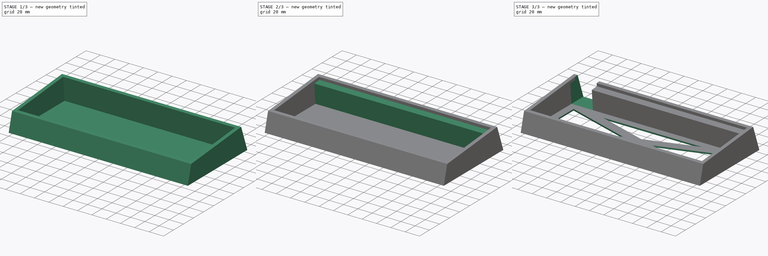
[diagram: build sequence overview — one tinted view per stage of 3, left to right]
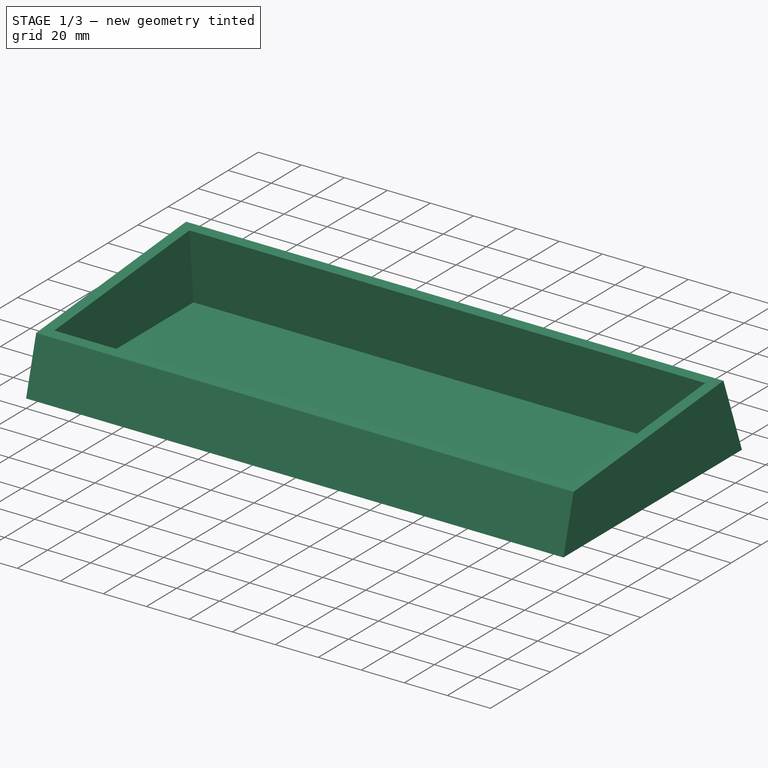
[diagram: stage 1 of 3 — iso view after this stage's code; geometry added in this stage tinted green]
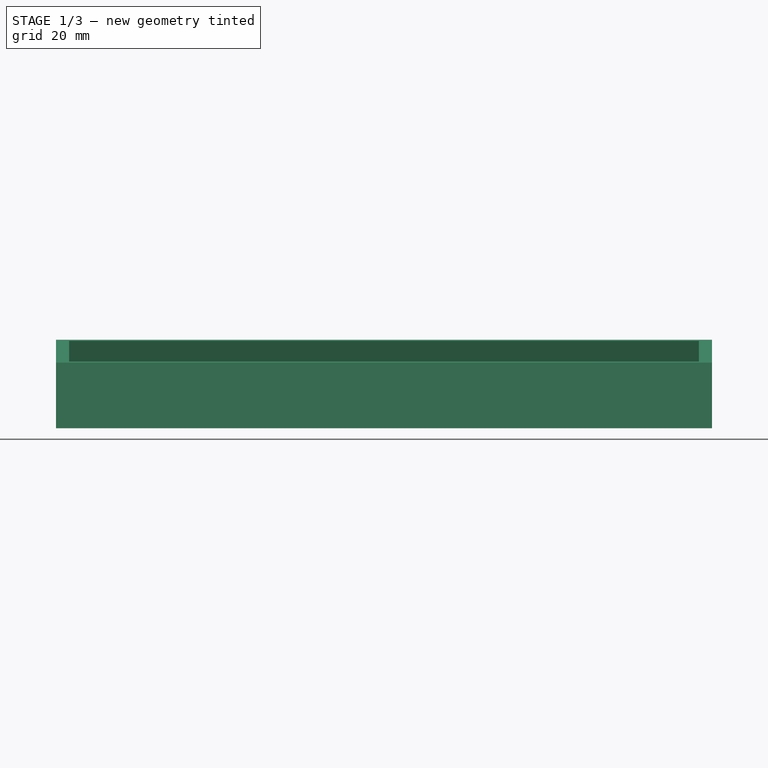
[diagram: stage 1 of 3 — front view after this stage's code; geometry added in this stage tinted green]
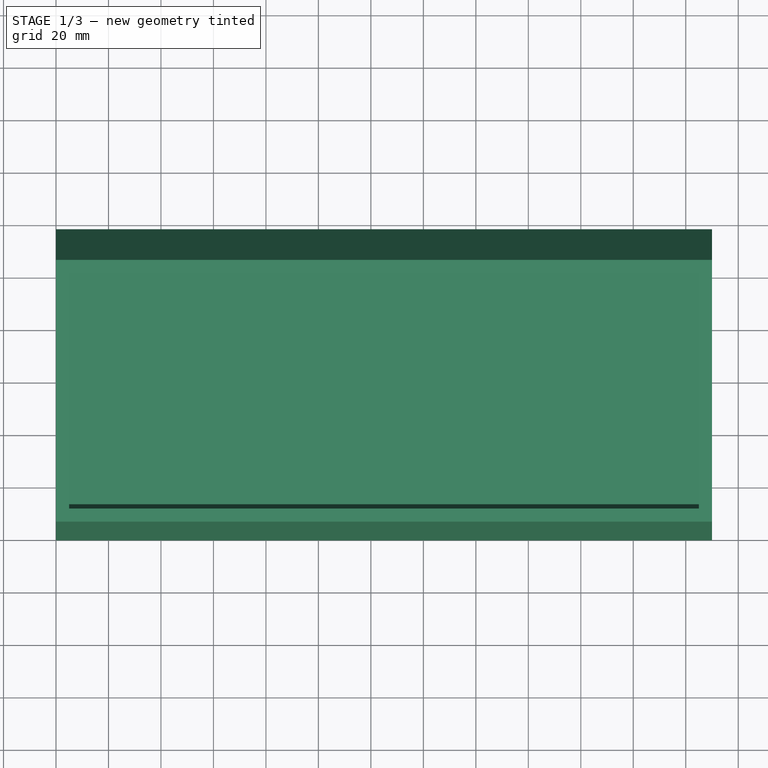
[diagram: stage 1 of 3 — top view after this stage's code; geometry added in this stage tinted green]
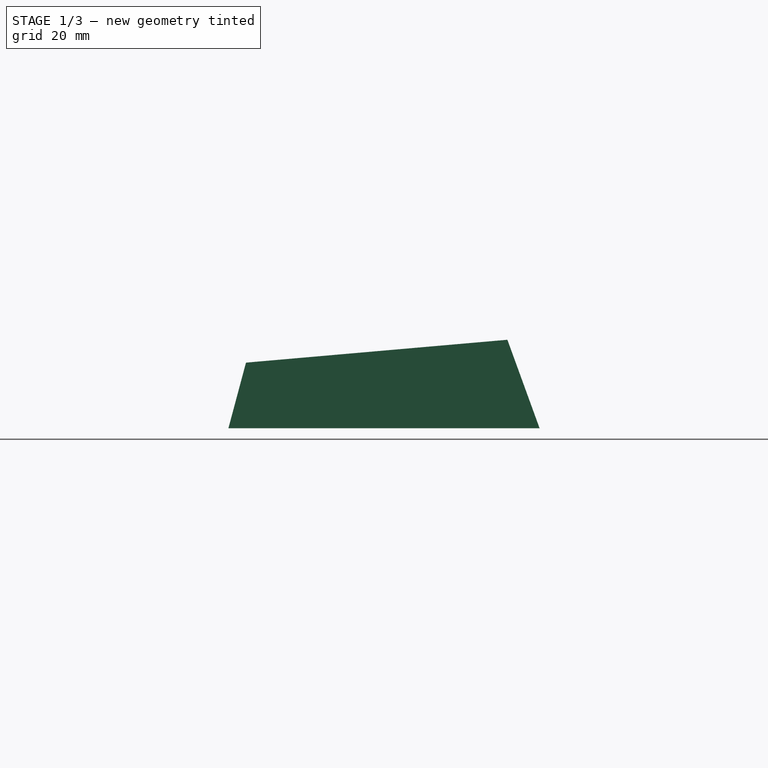
[diagram: stage 1 of 3 — right view after this stage's code; geometry added in this stage tinted green]
FCSTD DOCUMENT  (FreeCAD 0.20R)
Label: Case
License: All rights reserved
LicenseURL: http://en.wikipedia.org/wiki/All_rights_reserved
objects: Sketcher::SketchObject×6, PartDesign::Pad×3, PartDesign::Pocket×3, PartDesign::Body×1
note: 19 computed .brp shape members not serialized (recipe doc carries the construction recipe); baked Part::Feature solids carry a one-line shape summary decoded from their .brp

FEATURE [Sketcher::SketchObject] Sketch
  FullyConstrained = true
  MapMode = 5
  Placement = pos=(0,0,0) rot=(0.57735,0.57735,0.57735;2.0944rad)
  Support = -> [YZ_Plane]
  sketch-geometry (4):
    g0: LineSegment StartX=0 StartY=0 StartZ=0 EndX=6.69873 EndY=25 EndZ=0
    g1: LineSegment StartX=6.69873 StartY=25 StartZ=0 EndX=106.318 EndY=33.7156 EndZ=0
    g2: LineSegment StartX=106.318 StartY=33.7156 StartZ=0 EndX=118.59 EndY=0 EndZ=0
    g3: LineSegment StartX=118.59 StartY=0 StartZ=0 EndX=0 EndY=0 EndZ=0
  constraints (11):
    c: Coincident(g-1,g0)
    c: Coincident(g0,g1)
    c: Coincident(g1,g2)
    c: PointOnObject(g2,g-1)
    c: Coincident(g2,g3)
    c: Coincident(g3,g0)
    c: Angle(g3,g1) = 0.0872665
    c: Angle(g3,g0) = 1.309
    c: Angle(g2,g3) = 1.22173
    c: DistanceY(g0,g0) = 25
    c: Distance(g1) = 100
FEATURE [PartDesign::Pad] Pad
  Direction = (1,-2e-16,3e-16)
  Length = 250
  Length2 = 10
  Placement = pos=(0,0,0) rot=(0.57735,0.57735,0.57735;2.0944rad)
  Profile = -> Sketch
  ReferenceAxis = -> Sketch [N_Axis]
  Type = 0
FEATURE [Sketcher::SketchObject] Sketch003
  ExternalGeometry = -> [Pad]
  FullyConstrained = true
  MapMode = 5
  Placement = pos=(-7.8e-15,-2.11972,24.2285) rot=(0.043578,0.043578,-0.998099;1.5727rad)
  Support = -> [Pad]
  sketch-geometry (4):
    g0: LineSegment StartX=-103.852 StartY=245 StartZ=0 EndX=-13.8521 EndY=245 EndZ=0
    g1: LineSegment StartX=-13.8521 StartY=245 StartZ=0 EndX=-13.8521 EndY=5 EndZ=0
    g2: LineSegment StartX=-13.8521 StartY=5 StartZ=0 EndX=-103.852 EndY=5 EndZ=0
    g3: LineSegment StartX=-103.852 StartY=5 StartZ=0 EndX=-103.852 EndY=245 EndZ=0
  constraints (12):
    c: Coincident(g0,g1)
    c: Coincident(g1,g2)
    c: Coincident(g2,g3)
    c: Coincident(g3,g0)
    c: Horizontal(g0)
    c: Horizontal(g2)
    c: Vertical(g1)
    c: Vertical(g3)
    c: DistanceY(g-3,g1) = 5
    c: DistanceX(g1,g-3) = 5
    c: DistanceX(g-5,g0) = 5
    c: DistanceY(g0,g-5) = 5
FEATURE [PartDesign::Pocket] Pocket
  AlongSketchNormal = false
  BaseFeature = -> Pad
  Direction = (4e-16,0.0871557,-0.996195)
  Length = 0
  Length2 = 5
  Offset = -2
  Placement = pos=(0,0,0) rot=(0.57735,0.57735,0.57735;2.0944rad)
  Profile = -> Sketch003
  ReferenceAxis = -> Sketch003 [N_Axis]
  Type = 3
  UpToFace = -> Pad [Face4]
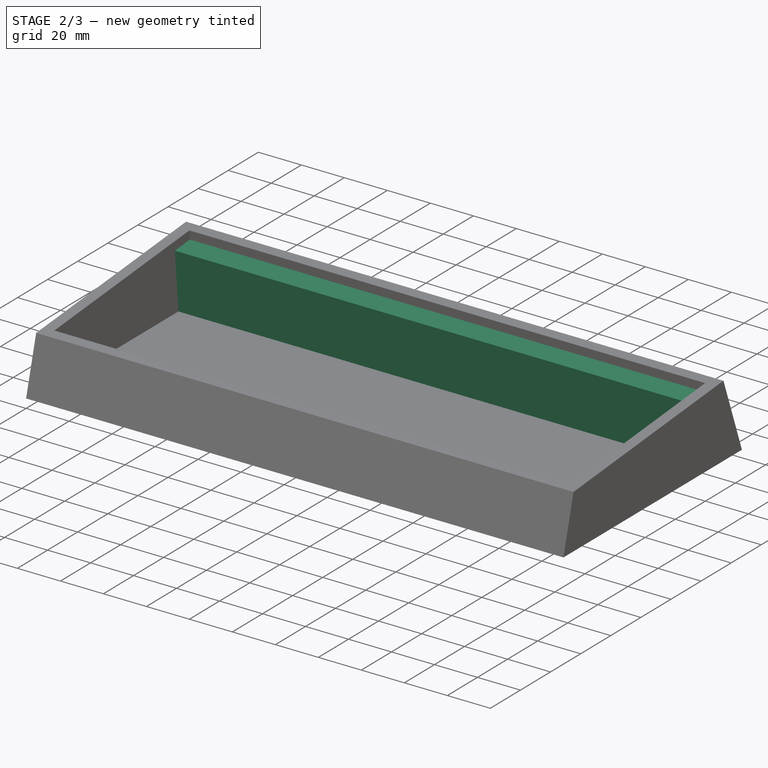
[diagram: stage 2 of 3 — iso view after this stage's code; geometry added in this stage tinted green]
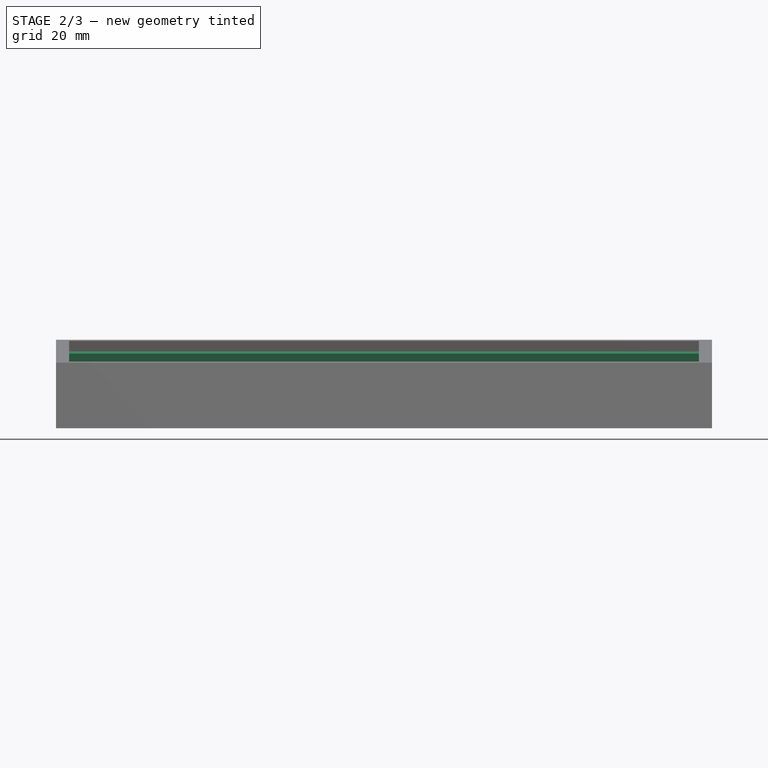
[diagram: stage 2 of 3 — front view after this stage's code; geometry added in this stage tinted green]
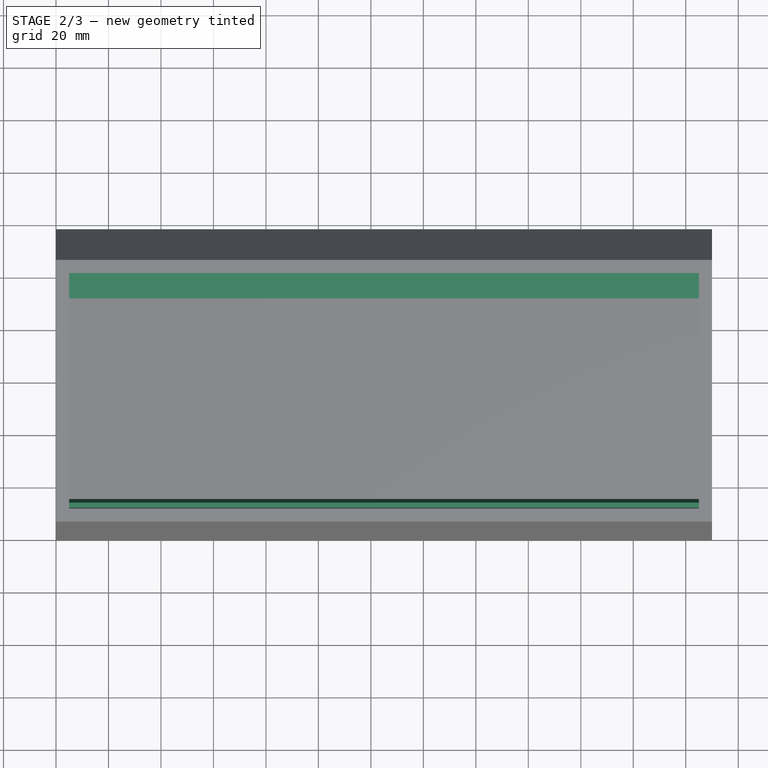
[diagram: stage 2 of 3 — top view after this stage's code; geometry added in this stage tinted green]
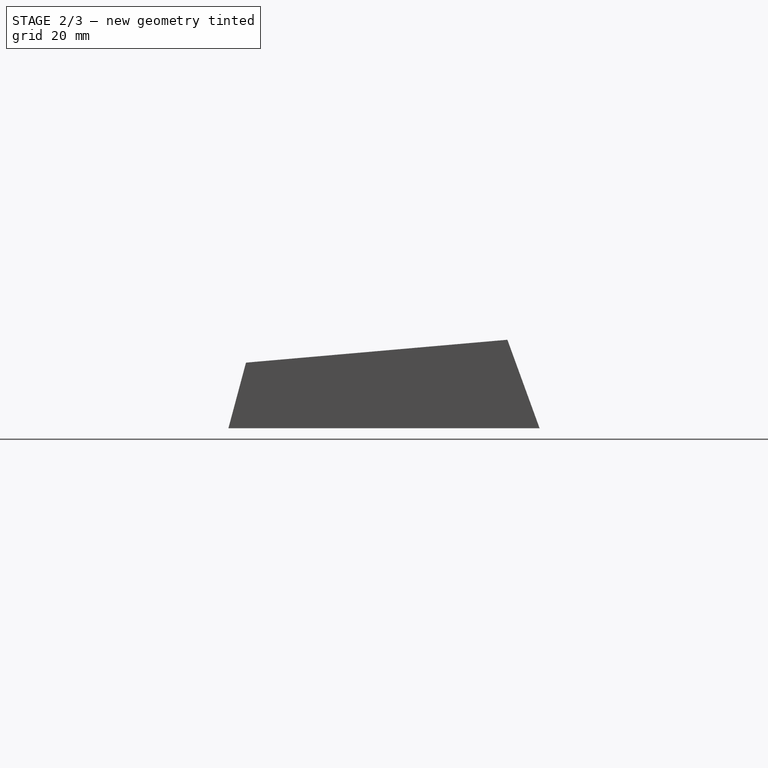
[diagram: stage 2 of 3 — right view after this stage's code; geometry added in this stage tinted green]
FEATURE [Sketcher::SketchObject] Sketch004
  ExternalGeometry = -> [Pocket]
  FullyConstrained = true
  MapMode = 5
  Placement = pos=(4.57e-14,103.457,9.05131) rot=(0.593426,0.593426,-0.543775;2.14549rad)
  Support = -> [Pocket]
  sketch-geometry (4):
    g0: LineSegment StartX=7.08588 StartY=5 StartZ=0 EndX=-20.321 EndY=5 EndZ=0
    g1: LineSegment StartX=-20.321 StartY=5 StartZ=0 EndX=-20.321 EndY=245 EndZ=0
    g2: LineSegment StartX=-20.321 StartY=245 StartZ=0 EndX=7.08588 EndY=245 EndZ=0
    g3: LineSegment StartX=7.08588 StartY=245 StartZ=0 EndX=7.08588 EndY=5 EndZ=0
  constraints (11):
    c: Coincident(g0,g1)
    c: Coincident(g1,g2)
    c: Coincident(g2,g3)
    c: Coincident(g3,g0)
    c: Horizontal(g0)
    c: Horizontal(g2)
    c: Vertical(g1)
    c: Vertical(g3)
    c: Coincident(g0,g-3)
    c: PointOnObject(g1,g-5)
    c: DistanceX(g-5,g1) = 4
FEATURE [PartDesign::Pad] Pad001
  BaseFeature = -> Pocket
  Direction = (-4e-16,-0.996195,-0.0871557)
  Length = 10
  Length2 = 10
  Placement = pos=(0,0,0) rot=(0.57735,0.57735,0.57735;2.0944rad)
  Profile = -> Sketch004
  ReferenceAxis = -> Sketch004 [N_Axis]
  Type = 0
FEATURE [Sketcher::SketchObject] Sketch005
  ExternalGeometry = -> [Pad001]
  FullyConstrained = true
  MapMode = 5
  Placement = pos=(6.1e-15,13.7994,1.20729) rot=(-0.559809,-0.559809,-0.610924;2.04477rad)
  Support = -> [Pad001]
  sketch-geometry (4):
    g0: LineSegment StartX=20.321 StartY=5 StartZ=0 EndX=0.788095 EndY=5 EndZ=0
    g1: LineSegment StartX=0.788095 StartY=5 StartZ=0 EndX=0.788095 EndY=245 EndZ=0
    g2: LineSegment StartX=0.788095 StartY=245 StartZ=0 EndX=20.321 EndY=245 EndZ=0
    g3: LineSegment StartX=20.321 StartY=245 StartZ=0 EndX=20.321 EndY=5 EndZ=0
  constraints (11):
    c: Coincident(g0,g1)
    c: Coincident(g1,g2)
    c: Coincident(g2,g3)
    c: Coincident(g3,g0)
    c: Horizontal(g0)
    c: Horizontal(g2)
    c: Vertical(g1)
    c: Vertical(g3)
    c: PointOnObject(g0,g-5)
    c: Coincident(g1,g-6)
    c: DistanceX(g2,g-6) = 4
FEATURE [PartDesign::Pad] Pad002
  BaseFeature = -> Pad001
  Direction = (7e-16,0.996195,0.0871557)
  Length = 2
  Length2 = 10
  Placement = pos=(0,0,0) rot=(0.57735,0.57735,0.57735;2.0944rad)
  Profile = -> Sketch005
  ReferenceAxis = -> Sketch005 [N_Axis]
  Type = 0
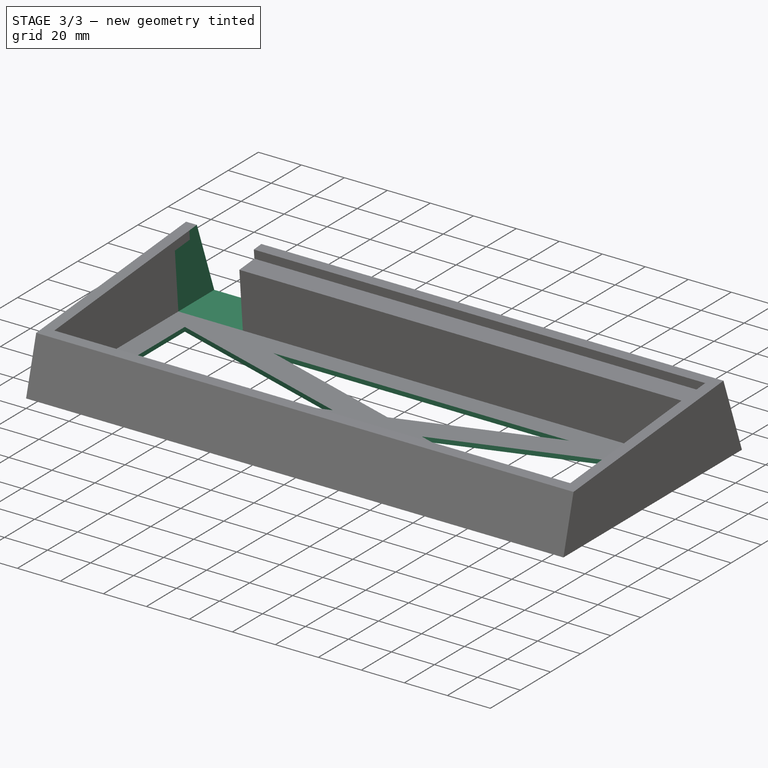
[diagram: stage 3 of 3 — iso view after this stage's code; geometry added in this stage tinted green]
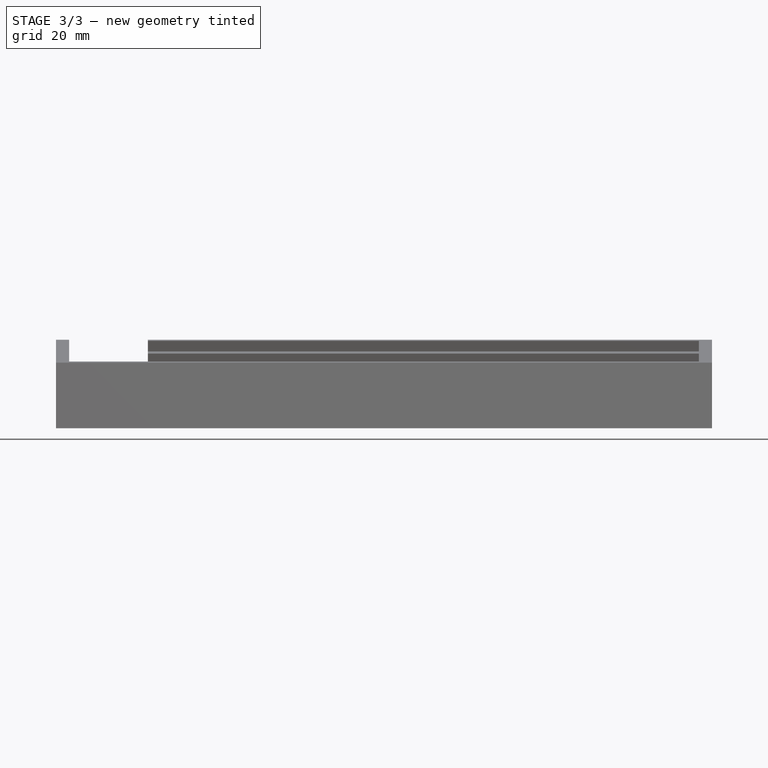
[diagram: stage 3 of 3 — front view after this stage's code; geometry added in this stage tinted green]
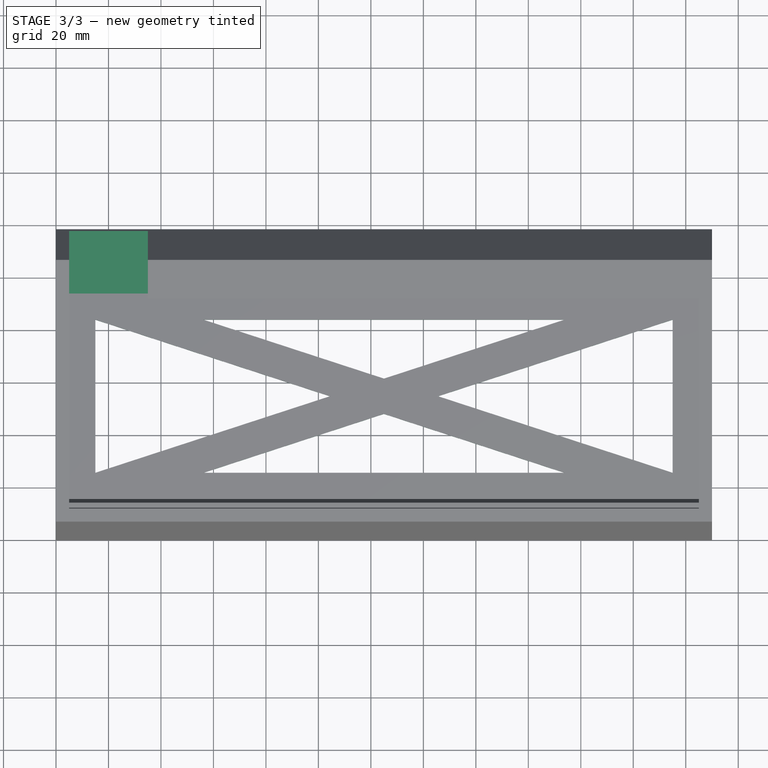
[diagram: stage 3 of 3 — top view after this stage's code; geometry added in this stage tinted green]
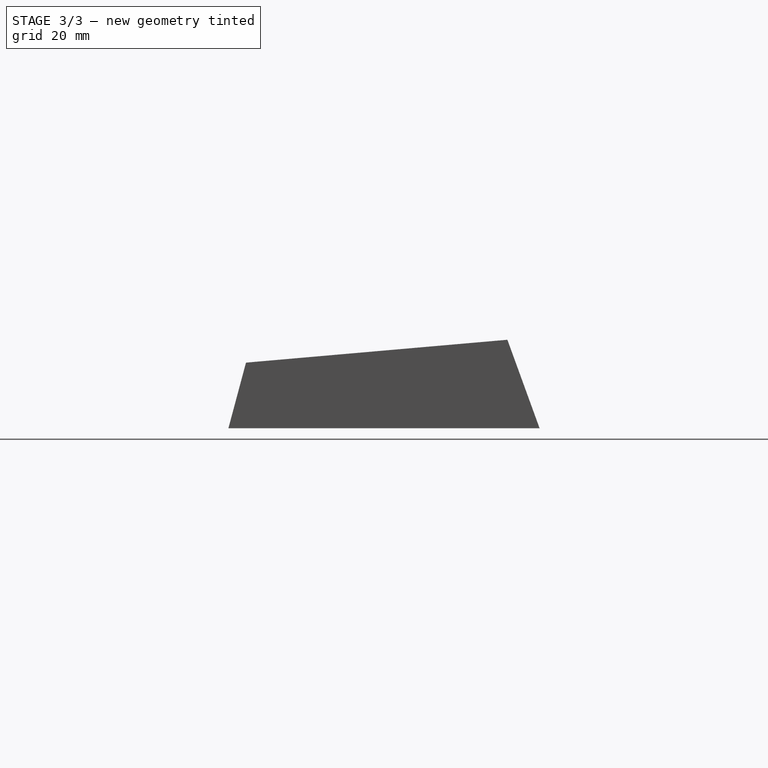
[diagram: stage 3 of 3 — right view after this stage's code; geometry added in this stage tinted green]
FEATURE [Sketcher::SketchObject] Sketch006
  ExternalGeometry = -> [Pad002]
  FullyConstrained = true
  MapMode = 5
  Placement = pos=(-7.8e-15,-2.11972,24.2285) rot=(0.043578,0.043578,-0.998099;1.5727rad)
  Support = -> [Pad002]
  sketch-geometry (4):
    g0: LineSegment StartX=-118.138 StartY=35 StartZ=0 EndX=-93.8521 EndY=35 EndZ=0
    g1: LineSegment StartX=-93.8521 StartY=35 StartZ=0 EndX=-93.8521 EndY=5 EndZ=0
    g2: LineSegment StartX=-93.8521 StartY=5 StartZ=0 EndX=-118.138 EndY=5 EndZ=0
    g3: LineSegment StartX=-118.138 StartY=5 StartZ=0 EndX=-118.138 EndY=35 EndZ=0
  constraints (11):
    c: Coincident(g0,g1)
    c: Coincident(g1,g2)
    c: Coincident(g2,g3)
    c: Coincident(g3,g0)
    c: Horizontal(g0)
    c: Horizontal(g2)
    c: Vertical(g1)
    c: Vertical(g3)
    c: PointOnObject(g0,g-3)
    c: Coincident(g1,g-4)
    c: DistanceY(g1,g1) = 30
FEATURE [PartDesign::Pocket] Pocket001
  BaseFeature = -> Pad002
  Direction = (3e-16,0.0871557,-0.996195)
  Length = 0
  Length2 = 5
  Placement = pos=(0,0,0) rot=(0.57735,0.57735,0.57735;2.0944rad)
  Profile = -> Sketch006
  ReferenceAxis = -> Sketch006 [N_Axis]
  Type = 3
  UpToFace = -> Pad002 [Face13]
FEATURE [Sketcher::SketchObject] Sketch007
  ExternalGeometry = -> [Pocket001]
  FullyConstrained = true
  MapMode = 5
  Placement = pos=(-1.2e-15,1.3e-15,1.99239) rot=(0,0,-1;1.5708rad)
  Support = -> [Pocket001]
  sketch-geometry (20):
    g0: LineSegment StartX=-94.0363 StartY=5 StartZ=0 EndX=-15.7231 EndY=245 EndZ=0
    g1: LineSegment StartX=-94.0363 StartY=245 StartZ=0 EndX=-15.7231 EndY=5 EndZ=0
    g2: GeomPoint X=-54.8797 Y=125 Z=0
    g3: LineSegment StartX=-94.0363 StartY=235 StartZ=0 EndX=-15.7231 EndY=235 EndZ=0
    g4: LineSegment StartX=-94.0363 StartY=15 StartZ=0 EndX=-15.7231 EndY=15 EndZ=0
    g5: LineSegment StartX=-84.0363 StartY=5 StartZ=0 EndX=-84.0363 EndY=245 EndZ=0
    g6: LineSegment StartX=-25.7231 StartY=5 StartZ=0 EndX=-25.7231 EndY=245 EndZ=0
    g7: LineSegment StartX=-54.8797 StartY=104.354 StartZ=0 EndX=-84.0363 EndY=15 EndZ=0
    g8: LineSegment StartX=-84.0363 StartY=15 StartZ=0 EndX=-25.7231 EndY=15 EndZ=0
    g9: LineSegment StartX=-25.7231 StartY=15 StartZ=0 EndX=-54.8797 EndY=104.354 EndZ=0
    g10: LineSegment StartX=-54.8797 StartY=145.646 StartZ=0 EndX=-84.0363 EndY=235 EndZ=0
    g11: LineSegment StartX=-84.0363 StartY=235 StartZ=0 EndX=-25.7231 EndY=235 EndZ=0
    g12: LineSegment StartX=-25.7231 StartY=235 StartZ=0 EndX=-54.8797 EndY=145.646 EndZ=0
    g13: LineSegment StartX=-84.0363 StartY=56.2924 StartZ=0 EndX=-84.0363 EndY=193.708 EndZ=0
    g14: LineSegment StartX=-84.0363 StartY=193.708 StartZ=0 EndX=-61.6167 EndY=125 EndZ=0
    g15: LineSegment StartX=-61.6167 StartY=125 StartZ=0 EndX=-84.0363 EndY=56.2924 EndZ=0
    g16: LineSegment StartX=-48.1428 StartY=125 StartZ=0 EndX=-25.7231 EndY=56.2924 EndZ=0
    g17: LineSegment StartX=-25.7231 StartY=56.2924 StartZ=0 EndX=-25.7231 EndY=193.708 EndZ=0
    g18: LineSegment StartX=-25.7231 StartY=193.708 StartZ=0 EndX=-48.1428 EndY=125 EndZ=0
    g19: GeomPoint X=-84.0363 Y=35.6462 Z=0
  constraints (57):
    c: Coincident(g0,g-6)
    c: Coincident(g0,g-5)
    c: Coincident(g1,g-7)
    c: Coincident(g1,g-5)
    c: PointOnObject(g2,g0)
    c: PointOnObject(g2,g1)
    c: PointOnObject(g3,g-3)
    c: PointOnObject(g3,g-5)
    c: PointOnObject(g4,g-4)
    c: PointOnObject(g4,g-5)
    c: Horizontal(g4)
    c: PointOnObject(g5,g-6)
    c: PointOnObject(g5,g-7)
    c: Vertical(g5)
    c: PointOnObject(g6,g-6)
    c: PointOnObject(g6,g-7)
    c: Vertical(g6)
    c: DistanceY(g3,g0) = 10
    c: DistanceY(g3,g1) = 10
    c: DistanceY(g0,g4) = 10
    c: DistanceX(g6,g1) = 10
    c: DistanceX(g0,g5) = 10
    c: PointOnObject(g7,g5)
    c: Coincident(g7,g8)
    c: PointOnObject(g8,g6)
    c: Horizontal(g8)
    c: Coincident(g8,g9)
    c: Coincident(g9,g7)
    c: PointOnObject(g10,g5)
    c: Coincident(g10,g11)
    c: PointOnObject(g11,g6)
    c: Coincident(g11,g12)
    c: Coincident(g12,g10)
    c: PointOnObject(g13,g5)
    c: PointOnObject(g13,g5)
    c: Coincident(g13,g14)
    c: Coincident(g14,g15)
    c: Coincident(g15,g13)
    c: PointOnObject(g16,g6)
    c: Coincident(g16,g17)
    c: PointOnObject(g17,g6)
    c: Coincident(g17,g18)
    c: Coincident(g18,g16)
    c: Horizontal(g14,g2)
    c: Vertical(g7,g2)
    c: Symmetric(g16,g14,g2)
    c: Symmetric(g10,g7,g2)
    c: Parallel(g1,g9)
    c: Parallel(g9,g16)
    c: PointOnObject(g7,g4)
    c: Horizontal(g11)
    c: PointOnObject(g10,g3)
    c: Parallel(g0,g15)
    c: Parallel(g14,g1)
    c: Parallel(g18,g0)
    c: PointOnObject(g19,g0)
    c: Symmetric(g7,g13,g19)
FEATURE [PartDesign::Pocket] Pocket002
  BaseFeature = -> Pocket001
  Direction = (6e-16,-7e-16,-1)
  Length = 0
  Length2 = 5
  Placement = pos=(0,0,0) rot=(0.57735,0.57735,0.57735;2.0944rad)
  Profile = -> Sketch007
  ReferenceAxis = -> Sketch007 [N_Axis]
  Type = 3
  UpToFace = -> Pocket001 [Face2]
FEATURE [PartDesign::Body] Body
  Group = -> [Sketch,Pad,Sketch003,Pocket,Sketch004,Pad001,Sketch005,Pad002,Sketch006,Pocket001,Sketch007,Pocket002]
  Origin = -> Origin
  Tip = -> Pocket002
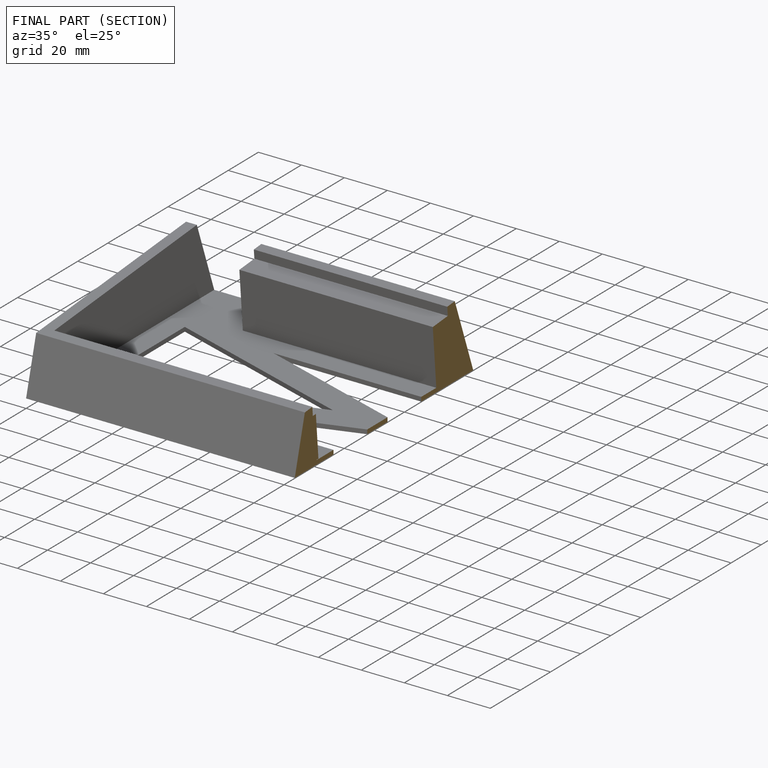
[diagram: finished part — half-section view (interior)]
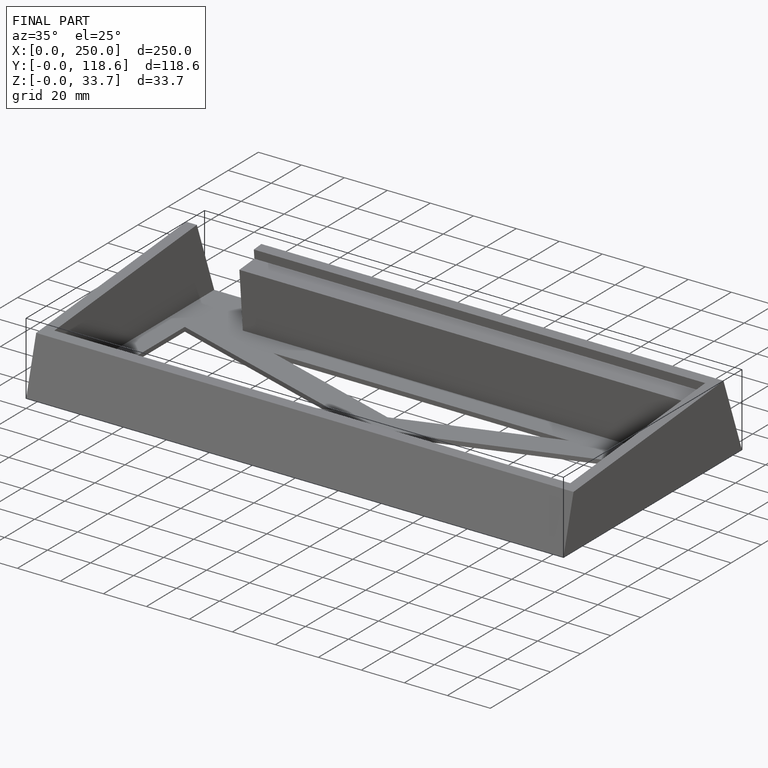
[diagram: finished part — iso view with bounding-box wireframe]
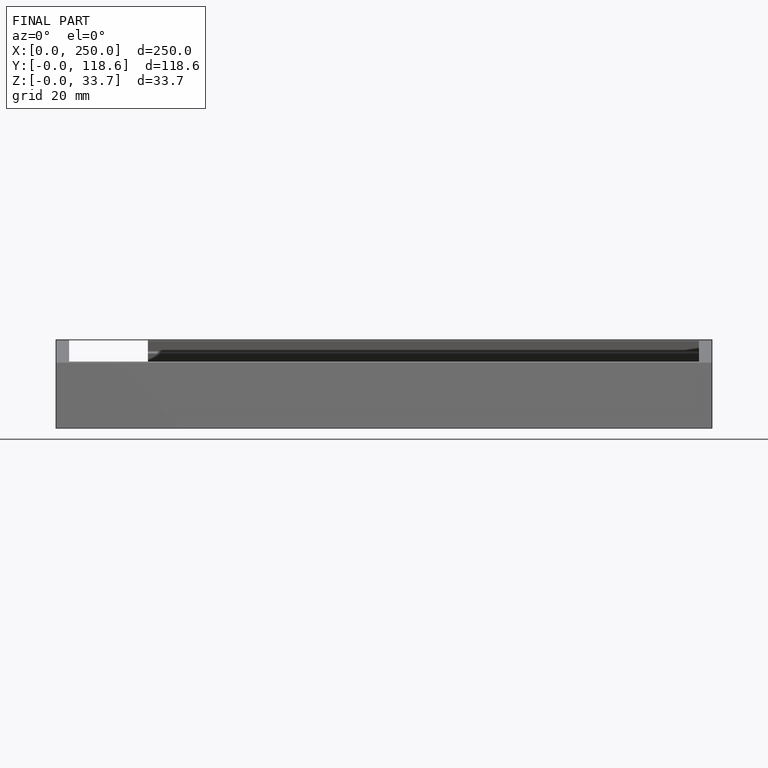
[diagram: finished part — front view with bounding-box wireframe]
